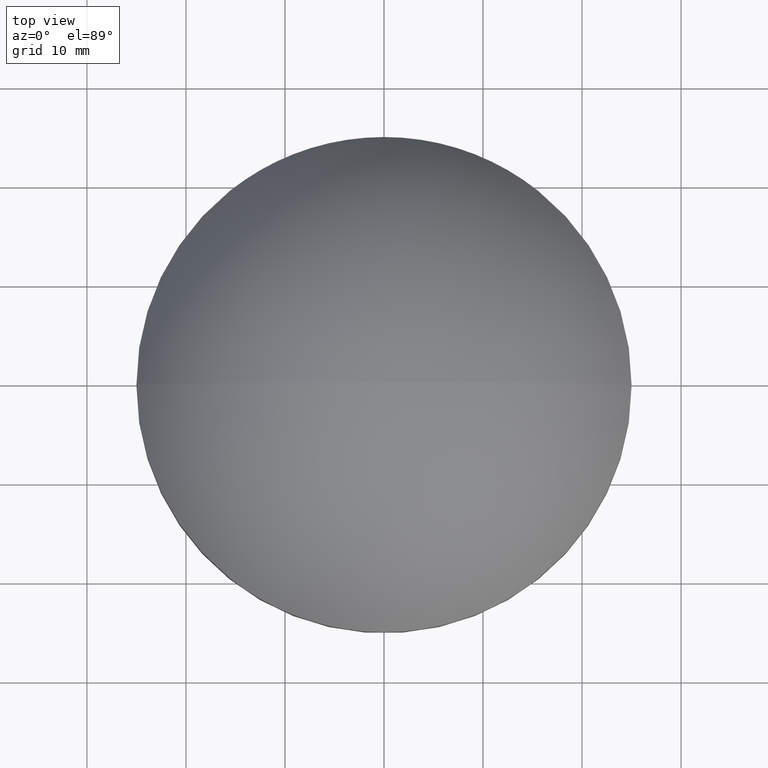
[diagram: clean part render]
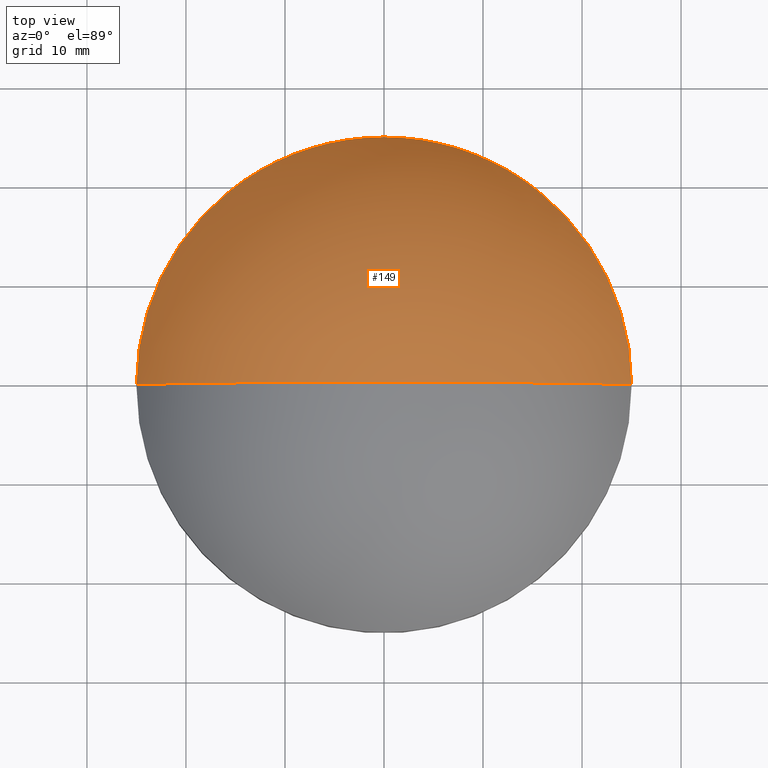
[diagram: same view with one face highlighted and labeled with its STEP entity id]
A machine part, top view. The second image highlights one B-rep face of the part: STEP entity #149.
In plain terms, the highlighted spherical surface has radius 29.4656 mm.
Its self-contained STEP definition (entity closure, byte-faithful):
#12 = CARTESIAN_POINT ( 'NONE',  ( 25.00000000000000000, 3.061616997868382254E-15, 7.469999999999999751 ) ) ;
#14 = DIRECTION ( 'NONE',  ( -1.224646799147353207E-16, -1.000000000000000000, -0.000000000000000000 ) ) ;
#26 = DIRECTION ( 'NONE',  ( -1.000000000000000000, 0.000000000000000000, 0.000000000000000000 ) ) ;
#31 = DIRECTION ( 'NONE',  ( 0.000000000000000000, 0.000000000000000000, 1.000000000000000000 ) ) ;
#38 = EDGE_CURVE ( 'NONE', #191, #140, #214, .T. ) ;
#47 = CARTESIAN_POINT ( 'NONE',  ( 0.000000000000000000, 0.000000000000000000, -8.125641672674834837 ) ) ;
#54 = AXIS2_PLACEMENT_3D ( 'NONE', #47, #14, #111 ) ;
#66 = VERTEX_POINT ( 'NONE', #99 ) ;
#70 = EDGE_LOOP ( 'NONE', ( #205, #123, #175 ) ) ;
#71 = AXIS2_PLACEMENT_3D ( 'NONE', #190, #102, #103 ) ;
#84 = CARTESIAN_POINT ( 'NONE',  ( -25.00000000000000000, 0.000000000000000000, 7.469999999999999751 ) ) ;
#88 = CIRCLE ( 'NONE', #54, 29.46564167267484180 ) ;
#99 = CARTESIAN_POINT ( 'NONE',  ( -1.804250187963205365E-15, 0.000000000000000000, 21.34000000000000341 ) ) ;
#101 = AXIS2_PLACEMENT_3D ( 'NONE', #180, #130, #31 ) ;
#102 = DIRECTION ( 'NONE',  ( 0.000000000000000000, 0.000000000000000000, 1.000000000000000000 ) ) ;
#103 = DIRECTION ( 'NONE',  ( 1.000000000000000000, 0.000000000000000000, 0.000000000000000000 ) ) ;
#104 = FACE_OUTER_BOUND ( 'NONE', #70, .T. ) ;
#111 = DIRECTION ( 'NONE',  ( 1.000000000000000000, -1.224646799147353207E-16, 0.000000000000000000 ) ) ;
#123 = ORIENTED_EDGE ( 'NONE', *, *, #38, .T. ) ;
#130 = DIRECTION ( 'NONE',  ( 0.000000000000000000, 1.000000000000000000, 0.000000000000000000 ) ) ;
#140 = VERTEX_POINT ( 'NONE', #84 ) ;
#149 = ADVANCED_FACE ( 'NONE', ( #104 ), #172, .T. ) ;
#155 = CARTESIAN_POINT ( 'NONE',  ( 0.000000000000000000, 0.000000000000000000, -8.125641672674834837 ) ) ;
#172 = SPHERICAL_SURFACE ( 'NONE', #199, 29.46564167267484180 ) ;
#175 = ORIENTED_EDGE ( 'NONE', *, *, #182, .T. ) ;
#177 = DIRECTION ( 'NONE',  ( -0.000000000000000000, -1.000000000000000000, 0.000000000000000000 ) ) ;
#180 = CARTESIAN_POINT ( 'NONE',  ( 0.000000000000000000, 0.000000000000000000, -8.125641672674834837 ) ) ;
#182 = EDGE_CURVE ( 'NONE', #140, #66, #200, .T. ) ;
#189 = EDGE_CURVE ( 'NONE', #191, #66, #88, .T. ) ;
#190 = CARTESIAN_POINT ( 'NONE',  ( 0.000000000000000000, 0.000000000000000000, 7.469999999999999751 ) ) ;
#191 = VERTEX_POINT ( 'NONE', #12 ) ;
#199 = AXIS2_PLACEMENT_3D ( 'NONE', #155, #177, #26 ) ;
#200 = CIRCLE ( 'NONE', #101, 29.46564167267484180 ) ;
#205 = ORIENTED_EDGE ( 'NONE', *, *, #189, .F. ) ;
#214 = CIRCLE ( 'NONE', #71, 25.00000000000000000 ) ;